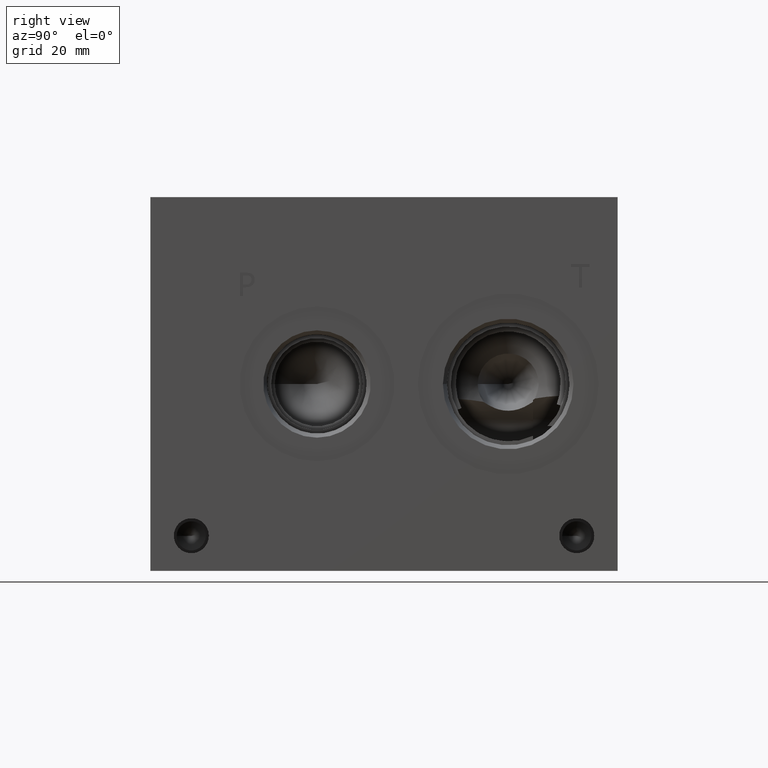
[diagram: clean part render]
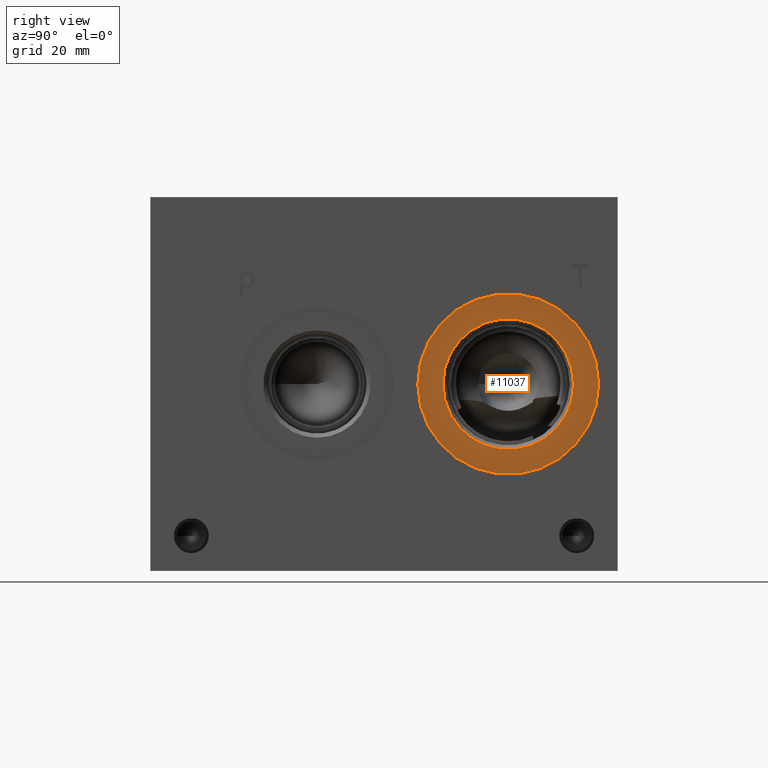
[diagram: same view with one face highlighted and labeled with its STEP entity id]
A machine part, right view. The second image highlights one B-rep face of the part: STEP entity #11037.
In plain terms, the highlighted planar face has unit normal (1, 0, 0).
Its self-contained STEP definition (entity closure, byte-faithful):
#186=CIRCLE('',#11548,24.5618);
#187=CIRCLE('',#11549,24.5618);
#188=CIRCLE('',#11550,17.7546);
#388=FACE_BOUND('',#1836,.T.);
#717=PLANE('',#11547);
#1213=FACE_OUTER_BOUND('',#1835,.T.);
#1835=EDGE_LOOP('',(#9490,#9491));
#1836=EDGE_LOOP('',(#9492));
#5198=VERTEX_POINT('',#18758);
#5199=VERTEX_POINT('',#18759);
#5200=VERTEX_POINT('',#18762);
#6682=EDGE_CURVE('',#5198,#5199,#186,.T.);
#6683=EDGE_CURVE('',#5199,#5198,#187,.T.);
#6684=EDGE_CURVE('',#5200,#5200,#188,.T.);
#9490=ORIENTED_EDGE('',*,*,#6682,.T.);
#9491=ORIENTED_EDGE('',*,*,#6683,.T.);
#9492=ORIENTED_EDGE('',*,*,#6684,.F.);
#11037=ADVANCED_FACE('',(#1213,#388),#717,.T.);
#11547=AXIS2_PLACEMENT_3D('',#18757,#13543,#13544);
#11548=AXIS2_PLACEMENT_3D('',#18760,#13545,#13546);
#11549=AXIS2_PLACEMENT_3D('',#18761,#13547,#13548);
#11550=AXIS2_PLACEMENT_3D('',#18763,#13549,#13550);
#13543=DIRECTION('center_axis',(1.,0.,0.));
#13544=DIRECTION('ref_axis',(0.,1.,0.));
#13545=DIRECTION('center_axis',(1.,0.,0.));
#13546=DIRECTION('ref_axis',(0.,1.,0.));
#13547=DIRECTION('center_axis',(1.,0.,0.));
#13548=DIRECTION('ref_axis',(0.,1.,0.));
#13549=DIRECTION('center_axis',(1.,0.,0.));
#13550=DIRECTION('ref_axis',(0.,1.,0.));
#18757=CARTESIAN_POINT('Origin',(113.5126,97.2566,50.8));
#18758=CARTESIAN_POINT('',(113.5126,121.8184,50.8));
#18759=CARTESIAN_POINT('',(113.5126,72.6948,50.8));
#18760=CARTESIAN_POINT('Origin',(113.5126,97.2566,50.8));
#18761=CARTESIAN_POINT('Origin',(113.5126,97.2566,50.8));
#18762=CARTESIAN_POINT('',(113.5126,79.502,50.8));
#18763=CARTESIAN_POINT('Origin',(113.5126,97.2566,50.8));